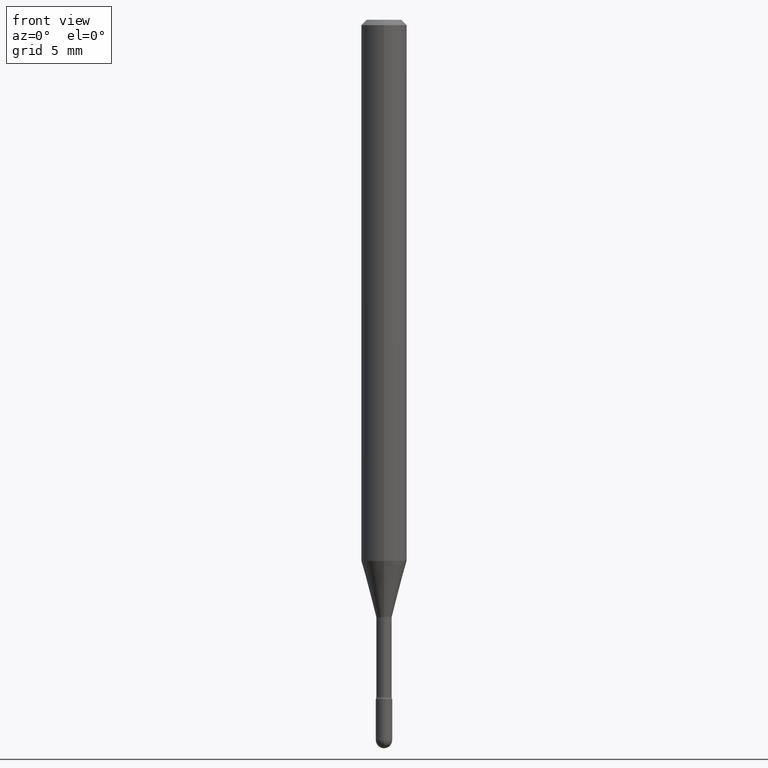
[diagram: clean part render]
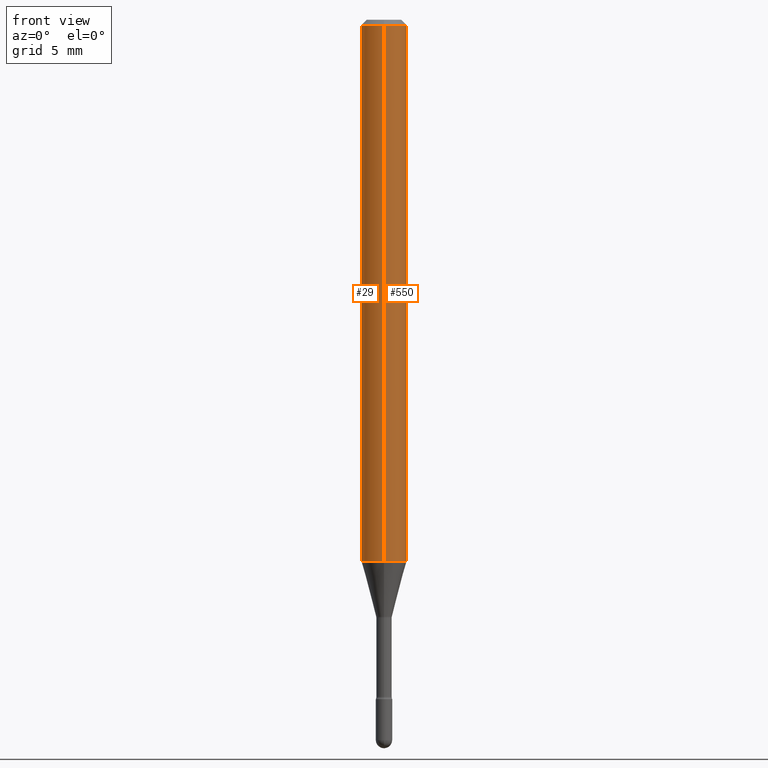
[diagram: same view with one multi-face feature highlighted, each face labeled with its STEP entity id]
A machine part, front view. The highlighted faces form ONE feature: a constant-radius fillet chain: 2 tangent blend faces with common blend radius 1.5875 mm. The faces share edges in the B-rep.
Their STEP definitions:
[1] entity #29 (Cylinder):
#8 = ORIENTED_EDGE ( 'NONE', *, *, #364, .F. ) ;
#16 = CIRCLE ( 'NONE', #69, 0.06250000000000000000 ) ;
#29 = ADVANCED_FACE ( 'NONE', ( #293 ), #63, .T. ) ;
#47 = DIRECTION ( 'NONE',  ( -2.445416930396453536E-29, 3.491555627925126489E-15, 1.000000000000000000 ) ) ;
#63 = CYLINDRICAL_SURFACE ( 'NONE', #119, 0.06250000000000000000 ) ;
#66 = LINE ( 'NONE', #375, #326 ) ;
#69 = AXIS2_PLACEMENT_3D ( 'NONE', #227, #287, #231 ) ;
#88 = VERTEX_POINT ( 'NONE', #487 ) ;
#89 = ORIENTED_EDGE ( 'NONE', *, *, #403, .T. ) ;
#115 = CARTESIAN_POINT ( 'NONE',  ( 3.633106289342633259E-29, -5.187333314711248527E-15, -1.485679699107027130 ) ) ;
#119 = AXIS2_PLACEMENT_3D ( 'NONE', #553, #511, #331 ) ;
#169 = VERTEX_POINT ( 'NONE', #408 ) ;
#182 = ORIENTED_EDGE ( 'NONE', *, *, #476, .F. ) ;
#214 = ORIENTED_EDGE ( 'NONE', *, *, #401, .T. ) ;
#227 = CARTESIAN_POINT ( 'NONE',  ( 3.668125395594700413E-31, -5.237333441887718773E-17, -0.01500000000000008271 ) ) ;
#231 = DIRECTION ( 'NONE',  ( -6.982962677686265922E-15, -1.000000000000000000, 3.483106191921935554E-15 ) ) ;
#234 = DIRECTION ( 'NONE',  ( -6.982962677686265922E-15, -1.000000000000000000, 4.370956789862821150E-15 ) ) ;
#237 = DIRECTION ( 'NONE',  ( -2.445416930396453536E-29, 3.491555627925126489E-15, 1.000000000000000000 ) ) ;
#244 = CARTESIAN_POINT ( 'NONE',  ( -4.364351673553912750E-16, -0.06250000000000005551, -0.01499999999999986587 ) ) ;
#287 = DIRECTION ( 'NONE',  ( -2.445416930396453536E-29, 3.491555627925126489E-15, 1.000000000000000000 ) ) ;
#292 = CARTESIAN_POINT ( 'NONE',  ( 4.440892098500625669E-16, 0.06250000000000000000, 2.598511721459256577E-16 ) ) ;
#293 = FACE_OUTER_BOUND ( 'NONE', #322, .T. ) ;
#300 = VECTOR ( 'NONE', #47, 39.37007874015748143 ) ;
#322 = EDGE_LOOP ( 'NONE', ( #182, #89, #214, #8 ) ) ;
#326 = VECTOR ( 'NONE', #373, 39.37007874015748143 ) ;
#331 = DIRECTION ( 'NONE',  ( -6.982962677686265922E-15, -1.000000000000000000, 3.491555627925125306E-15 ) ) ;
#337 = VERTEX_POINT ( 'NONE', #371 ) ;
#345 = LINE ( 'NONE', #292, #300 ) ;
#364 = EDGE_CURVE ( 'NONE', #337, #399, #16, .T. ) ;
#371 = CARTESIAN_POINT ( 'NONE',  ( 4.440892098500991996E-16, 0.06249999999999995143, -0.01500000000000030129 ) ) ;
#373 = DIRECTION ( 'NONE',  ( -2.445416930396453536E-29, 3.491555627925126489E-15, 1.000000000000000000 ) ) ;
#375 = CARTESIAN_POINT ( 'NONE',  ( -4.364351673553916201E-16, -0.06250000000000000000, 6.962956256365663702E-16 ) ) ;
#395 = CIRCLE ( 'NONE', #475, 0.06250000000000000000 ) ;
#399 = VERTEX_POINT ( 'NONE', #244 ) ;
#401 = EDGE_CURVE ( 'NONE', #169, #399, #66, .T. ) ;
#403 = EDGE_CURVE ( 'NONE', #88, #169, #395, .T. ) ;
#408 = CARTESIAN_POINT ( 'NONE',  ( -4.364351673553553325E-16, -0.06250000000000520417, -1.485679699107026686 ) ) ;
#475 = AXIS2_PLACEMENT_3D ( 'NONE', #115, #237, #234 ) ;
#476 = EDGE_CURVE ( 'NONE', #88, #337, #345, .T. ) ;
#487 = CARTESIAN_POINT ( 'NONE',  ( 4.440892098500988052E-16, 0.06249999999999478889, -1.485679699107027352 ) ) ;
#511 = DIRECTION ( 'NONE',  ( -2.445416930396453536E-29, 3.491555627925126489E-15, 1.000000000000000000 ) ) ;
#553 = CARTESIAN_POINT ( 'NONE',  ( -1.169113584055446105E-44, 1.669184350826100908E-30, 4.780733988912460139E-16 ) ) ;
[2] entity #550 (Cylinder):
#4 = AXIS2_PLACEMENT_3D ( 'NONE', #561, #41, #164 ) ;
#28 = DIRECTION ( 'NONE',  ( -6.982962677686265922E-15, -1.000000000000000000, 3.483106191921935554E-15 ) ) ;
#41 = DIRECTION ( 'NONE',  ( -2.445416930396453536E-29, 3.491555627925126489E-15, 1.000000000000000000 ) ) ;
#47 = DIRECTION ( 'NONE',  ( -2.445416930396453536E-29, 3.491555627925126489E-15, 1.000000000000000000 ) ) ;
#66 = LINE ( 'NONE', #375, #326 ) ;
#88 = VERTEX_POINT ( 'NONE', #487 ) ;
#92 = CIRCLE ( 'NONE', #524, 0.06250000000000000000 ) ;
#96 = CARTESIAN_POINT ( 'NONE',  ( 3.668125395594700413E-31, -5.237333441887718773E-17, -0.01500000000000008271 ) ) ;
#127 = CARTESIAN_POINT ( 'NONE',  ( 3.633106289342633259E-29, -5.187333314711248527E-15, -1.485679699107027130 ) ) ;
#145 = DIRECTION ( 'NONE',  ( -2.445416930396453536E-29, 3.491555627925126489E-15, 1.000000000000000000 ) ) ;
#164 = DIRECTION ( 'NONE',  ( -6.982962677686265922E-15, -1.000000000000000000, 3.491555627925125306E-15 ) ) ;
#169 = VERTEX_POINT ( 'NONE', #408 ) ;
#205 = ORIENTED_EDGE ( 'NONE', *, *, #401, .F. ) ;
#207 = FACE_OUTER_BOUND ( 'NONE', #228, .T. ) ;
#228 = EDGE_LOOP ( 'NONE', ( #386, #493, #534, #205 ) ) ;
#244 = CARTESIAN_POINT ( 'NONE',  ( -4.364351673553912750E-16, -0.06250000000000005551, -0.01499999999999986587 ) ) ;
#292 = CARTESIAN_POINT ( 'NONE',  ( 4.440892098500625669E-16, 0.06250000000000000000, 2.598511721459256577E-16 ) ) ;
#300 = VECTOR ( 'NONE', #47, 39.37007874015748143 ) ;
#326 = VECTOR ( 'NONE', #373, 39.37007874015748143 ) ;
#337 = VERTEX_POINT ( 'NONE', #371 ) ;
#338 = EDGE_CURVE ( 'NONE', #399, #337, #92, .T. ) ;
#345 = LINE ( 'NONE', #292, #300 ) ;
#371 = CARTESIAN_POINT ( 'NONE',  ( 4.440892098500991996E-16, 0.06249999999999995143, -0.01500000000000030129 ) ) ;
#373 = DIRECTION ( 'NONE',  ( -2.445416930396453536E-29, 3.491555627925126489E-15, 1.000000000000000000 ) ) ;
#375 = CARTESIAN_POINT ( 'NONE',  ( -4.364351673553916201E-16, -0.06250000000000000000, 6.962956256365663702E-16 ) ) ;
#381 = CYLINDRICAL_SURFACE ( 'NONE', #4, 0.06250000000000000000 ) ;
#386 = ORIENTED_EDGE ( 'NONE', *, *, #508, .T. ) ;
#399 = VERTEX_POINT ( 'NONE', #244 ) ;
#401 = EDGE_CURVE ( 'NONE', #169, #399, #66, .T. ) ;
#408 = CARTESIAN_POINT ( 'NONE',  ( -4.364351673553553325E-16, -0.06250000000000520417, -1.485679699107026686 ) ) ;
#447 = AXIS2_PLACEMENT_3D ( 'NONE', #127, #471, #516 ) ;
#455 = CIRCLE ( 'NONE', #447, 0.06250000000000000000 ) ;
#471 = DIRECTION ( 'NONE',  ( -2.445416930396453536E-29, 3.491555627925126489E-15, 1.000000000000000000 ) ) ;
#476 = EDGE_CURVE ( 'NONE', #88, #337, #345, .T. ) ;
#487 = CARTESIAN_POINT ( 'NONE',  ( 4.440892098500988052E-16, 0.06249999999999478889, -1.485679699107027352 ) ) ;
#493 = ORIENTED_EDGE ( 'NONE', *, *, #476, .T. ) ;
#508 = EDGE_CURVE ( 'NONE', #169, #88, #455, .T. ) ;
#516 = DIRECTION ( 'NONE',  ( -6.982962677686265922E-15, -1.000000000000000000, 4.370956789862821150E-15 ) ) ;
#524 = AXIS2_PLACEMENT_3D ( 'NONE', #96, #145, #28 ) ;
#534 = ORIENTED_EDGE ( 'NONE', *, *, #338, .F. ) ;
#550 = ADVANCED_FACE ( 'NONE', ( #207 ), #381, .T. ) ;
#561 = CARTESIAN_POINT ( 'NONE',  ( -1.169113584055446105E-44, 1.669184350826100908E-30, 4.780733988912460139E-16 ) ) ;